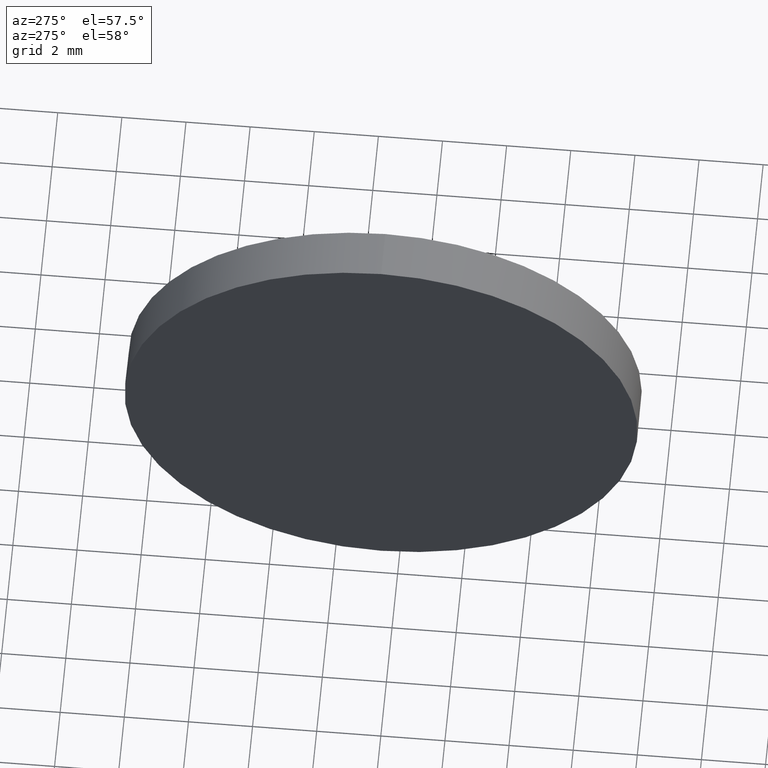
[diagram: clean part render]
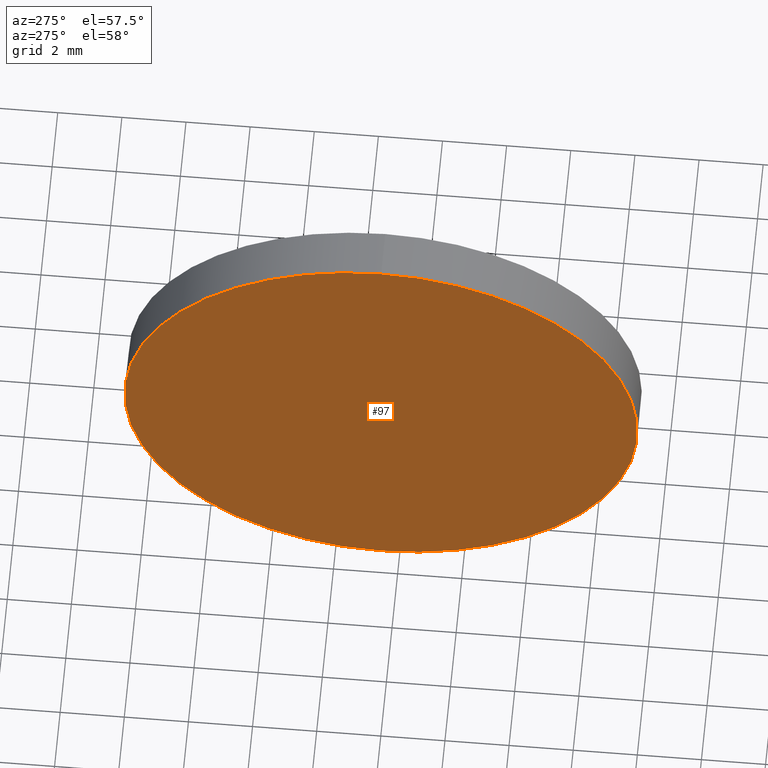
[diagram: same view with one face highlighted and labeled with its STEP entity id]
A machine part, auxiliary view. The second image highlights one B-rep face of the part: STEP entity #97.
In plain terms, the highlighted planar face has unit normal (1, 0, 0).
Its self-contained STEP definition (entity closure, byte-faithful):
#2 = AXIS2_PLACEMENT_3D ( 'NONE', #72, #83, #22 ) ;
#20 = ORIENTED_EDGE ( 'NONE', *, *, #142, .T. ) ;
#22 = DIRECTION ( 'NONE',  ( 0.0000000000000000000, 0.0000000000000000000, 1.000000000000000000 ) ) ;
#38 = CARTESIAN_POINT ( 'NONE',  ( 460.5821385095532000, 156.5683746678373000, 0.0000000000000000000 ) ) ;
#40 = CIRCLE ( 'NONE', #137, 8.000000000000007100 ) ;
#50 = FACE_OUTER_BOUND ( 'NONE', #129, .T. ) ;
#52 = CARTESIAN_POINT ( 'NONE',  ( 460.5821385095532000, 156.5683746678373000, 8.000000000000007100 ) ) ;
#64 = EDGE_CURVE ( 'NONE', #143, #158, #40, .T. ) ;
#72 = CARTESIAN_POINT ( 'NONE',  ( 460.5821385095532000, 156.5683746678373000, 0.0000000000000000000 ) ) ;
#79 = DIRECTION ( 'NONE',  ( 0.0000000000000000000, 0.0000000000000000000, 1.000000000000000000 ) ) ;
#82 = PLANE ( 'NONE',  #140 ) ;
#83 = DIRECTION ( 'NONE',  ( -1.000000000000000000, -0.0000000000000000000, -0.0000000000000000000 ) ) ;
#89 = DIRECTION ( 'NONE',  ( -1.000000000000000000, -0.0000000000000000000, -0.0000000000000000000 ) ) ;
#97 = ADVANCED_FACE ( 'NONE', ( #50 ), #82, .F. ) ;
#101 = CARTESIAN_POINT ( 'NONE',  ( 460.5821385095532000, 156.5683746678373000, 0.0000000000000000000 ) ) ;
#129 = EDGE_LOOP ( 'NONE', ( #20, #136 ) ) ;
#136 = ORIENTED_EDGE ( 'NONE', *, *, #64, .T. ) ;
#137 = AXIS2_PLACEMENT_3D ( 'NONE', #38, #89, #79 ) ;
#140 = AXIS2_PLACEMENT_3D ( 'NONE', #101, #166, #156 ) ;
#142 = EDGE_CURVE ( 'NONE', #158, #143, #184, .T. ) ;
#143 = VERTEX_POINT ( 'NONE', #163 ) ;
#156 = DIRECTION ( 'NONE',  ( 0.0000000000000000000, 0.0000000000000000000, -1.000000000000000000 ) ) ;
#158 = VERTEX_POINT ( 'NONE', #52 ) ;
#163 = CARTESIAN_POINT ( 'NONE',  ( 460.5821385095532000, 156.5683746678373000, -8.000000000000007100 ) ) ;
#166 = DIRECTION ( 'NONE',  ( 1.000000000000000000, 0.0000000000000000000, 0.0000000000000000000 ) ) ;
#184 = CIRCLE ( 'NONE', #2, 8.000000000000007100 ) ;